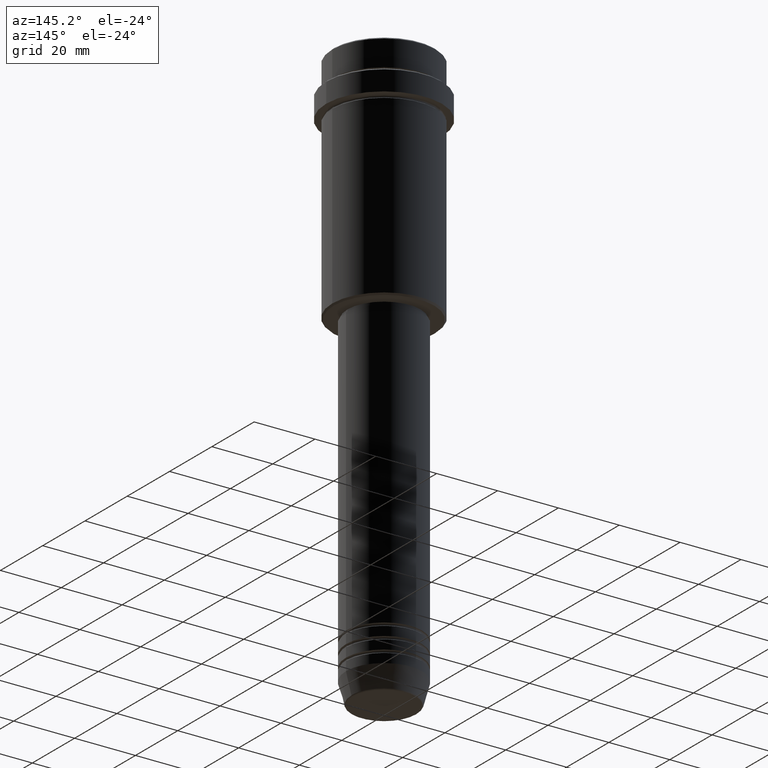
[diagram: clean part render]
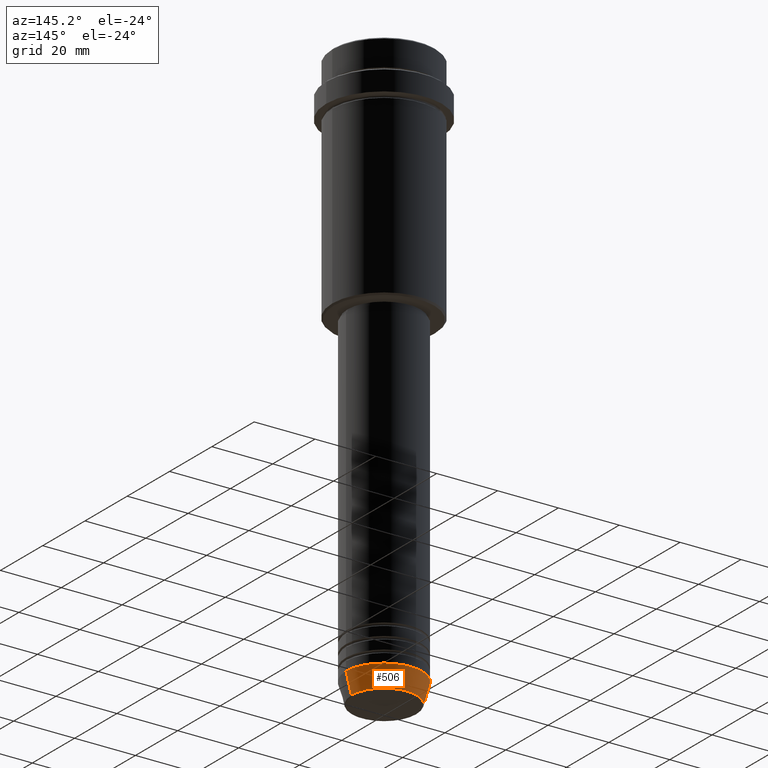
[diagram: same view with one face highlighted and labeled with its STEP entity id]
A machine part, auxiliary view. The second image highlights one B-rep face of the part: STEP entity #506.
In plain terms, the highlighted conical surface has half-angle 15 deg.
Its self-contained STEP definition (entity closure, byte-faithful):
#9 = EDGE_CURVE ( 'NONE', #595, #790, #893, .T. ) ;
#29 = DIRECTION ( 'NONE',  ( 0.2588190451025213501, 0.000000000000000000, 0.9659258262890680902 ) ) ;
#81 = EDGE_LOOP ( 'NONE', ( #972, #860, #1338, #1276 ) ) ;
#130 = LINE ( 'NONE', #1192, #821 ) ;
#217 = VERTEX_POINT ( 'NONE', #1065 ) ;
#218 = DIRECTION ( 'NONE',  ( -0.000000000000000000, -0.000000000000000000, 1.000000000000000000 ) ) ;
#246 = DIRECTION ( 'NONE',  ( -0.2588190451025213501, 3.169619151431772337E-17, 0.9659258262890680902 ) ) ;
#277 = AXIS2_PLACEMENT_3D ( 'NONE', #1308, #337, #1152 ) ;
#335 = EDGE_CURVE ( 'NONE', #217, #790, #468, .T. ) ;
#337 = DIRECTION ( 'NONE',  ( -0.000000000000000000, -0.000000000000000000, 1.000000000000000000 ) ) ;
#395 = DIRECTION ( 'NONE',  ( -0.000000000000000000, -0.000000000000000000, 1.000000000000000000 ) ) ;
#438 = CIRCLE ( 'NONE', #277, 10.72365507213718416 ) ;
#468 = LINE ( 'NONE', #1109, #579 ) ;
#506 = ADVANCED_FACE ( 'NONE', ( #1297 ), #937, .T. ) ;
#579 = VECTOR ( 'NONE', #246, 1000.000000000000000 ) ;
#595 = VERTEX_POINT ( 'NONE', #1035 ) ;
#660 = CARTESIAN_POINT ( 'NONE',  ( -12.50000000000000000, 1.530808498934191521E-15, -183.0000000000000000 ) ) ;
#666 = AXIS2_PLACEMENT_3D ( 'NONE', #1136, #395, #1243 ) ;
#790 = VERTEX_POINT ( 'NONE', #660 ) ;
#821 = VECTOR ( 'NONE', #29, 1000.000000000000000 ) ;
#860 = ORIENTED_EDGE ( 'NONE', *, *, #335, .T. ) ;
#887 = VERTEX_POINT ( 'NONE', #1140 ) ;
#893 = CIRCLE ( 'NONE', #666, 12.50000000000000000 ) ;
#937 = CONICAL_SURFACE ( 'NONE', #1342, 12.50000000000000000, 0.2617993877991500740 ) ;
#959 = DIRECTION ( 'NONE',  ( 1.000000000000000000, 0.000000000000000000, 0.000000000000000000 ) ) ;
#972 = ORIENTED_EDGE ( 'NONE', *, *, #1177, .T. ) ;
#1035 = CARTESIAN_POINT ( 'NONE',  ( 12.50000000000000000, 0.000000000000000000, -183.0000000000000000 ) ) ;
#1065 = CARTESIAN_POINT ( 'NONE',  ( -10.72365507213718416, 1.422038742429750121E-15, -189.6294095225512706 ) ) ;
#1109 = CARTESIAN_POINT ( 'NONE',  ( -12.50000000000000000, 1.530808498934191521E-15, -183.0000000000000000 ) ) ;
#1136 = CARTESIAN_POINT ( 'NONE',  ( 0.000000000000000000, 0.000000000000000000, -183.0000000000000000 ) ) ;
#1140 = CARTESIAN_POINT ( 'NONE',  ( 10.72365507213718416, 0.000000000000000000, -189.6294095225512706 ) ) ;
#1152 = DIRECTION ( 'NONE',  ( 1.000000000000000000, 0.000000000000000000, 0.000000000000000000 ) ) ;
#1177 = EDGE_CURVE ( 'NONE', #887, #217, #438, .T. ) ;
#1192 = CARTESIAN_POINT ( 'NONE',  ( 12.50000000000000000, 0.000000000000000000, -183.0000000000000000 ) ) ;
#1243 = DIRECTION ( 'NONE',  ( 1.000000000000000000, 0.000000000000000000, 0.000000000000000000 ) ) ;
#1276 = ORIENTED_EDGE ( 'NONE', *, *, #1379, .F. ) ;
#1297 = FACE_OUTER_BOUND ( 'NONE', #81, .T. ) ;
#1308 = CARTESIAN_POINT ( 'NONE',  ( 0.000000000000000000, 0.000000000000000000, -189.6294095225512706 ) ) ;
#1338 = ORIENTED_EDGE ( 'NONE', *, *, #9, .F. ) ;
#1342 = AXIS2_PLACEMENT_3D ( 'NONE', #1407, #218, #959 ) ;
#1379 = EDGE_CURVE ( 'NONE', #887, #595, #130, .T. ) ;
#1407 = CARTESIAN_POINT ( 'NONE',  ( 0.000000000000000000, 0.000000000000000000, -183.0000000000000000 ) ) ;